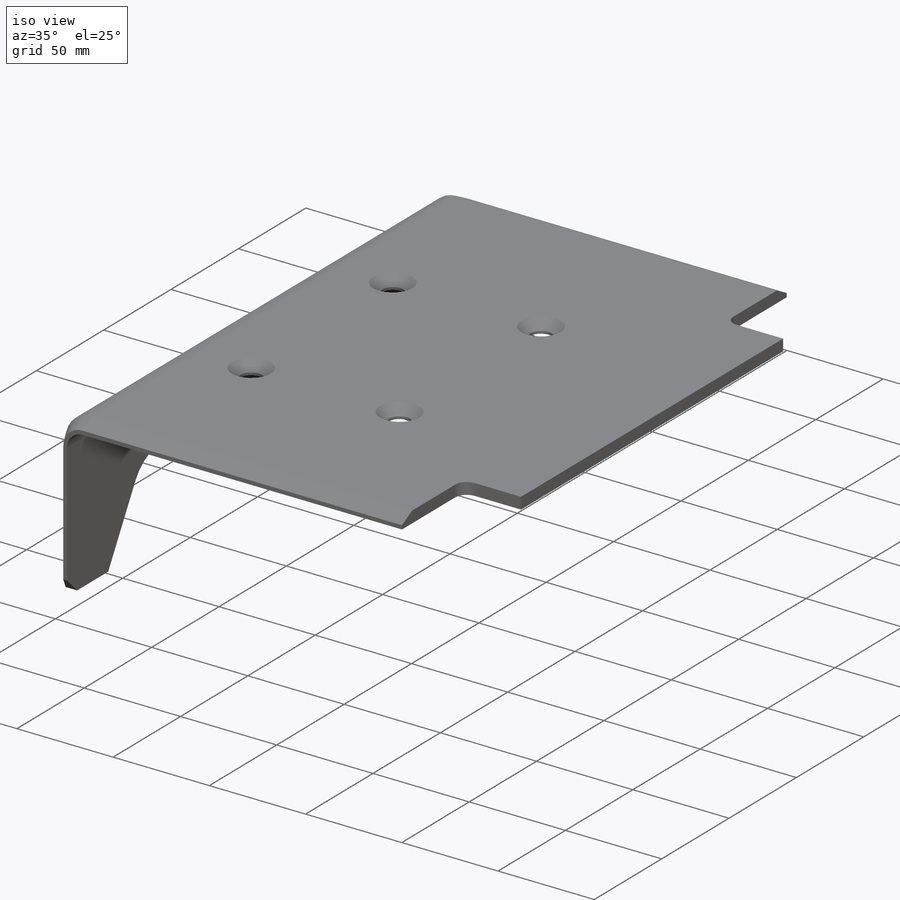
[diagram: iso view]
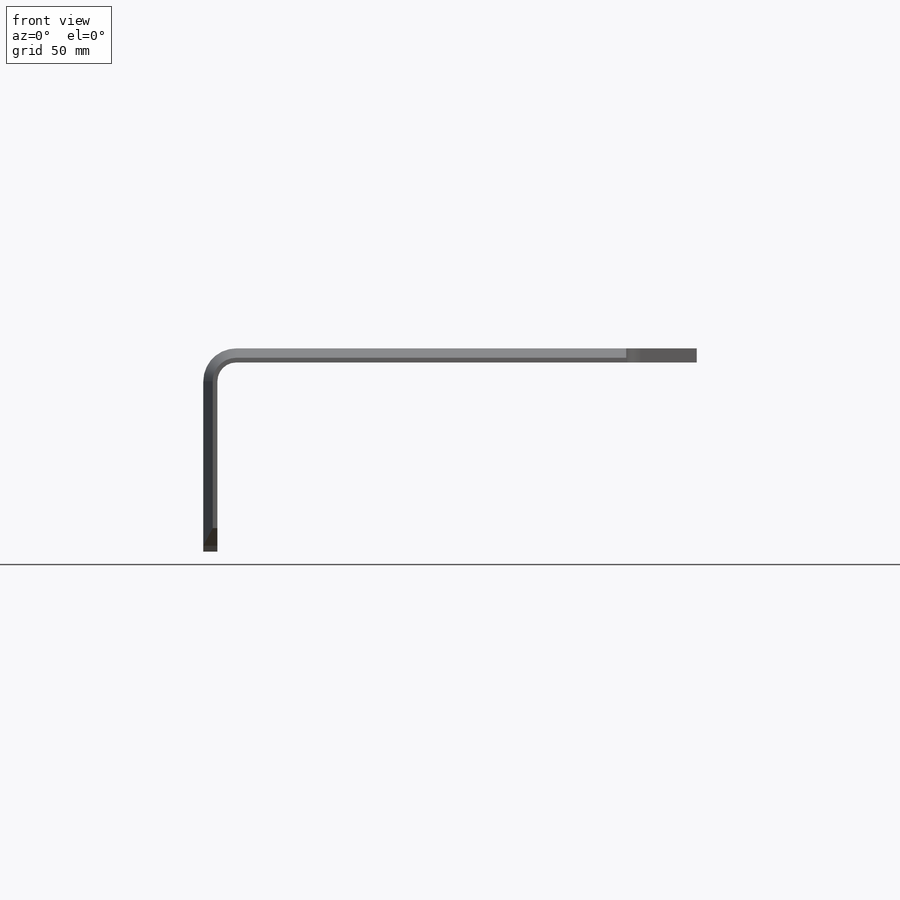
[diagram: front view]
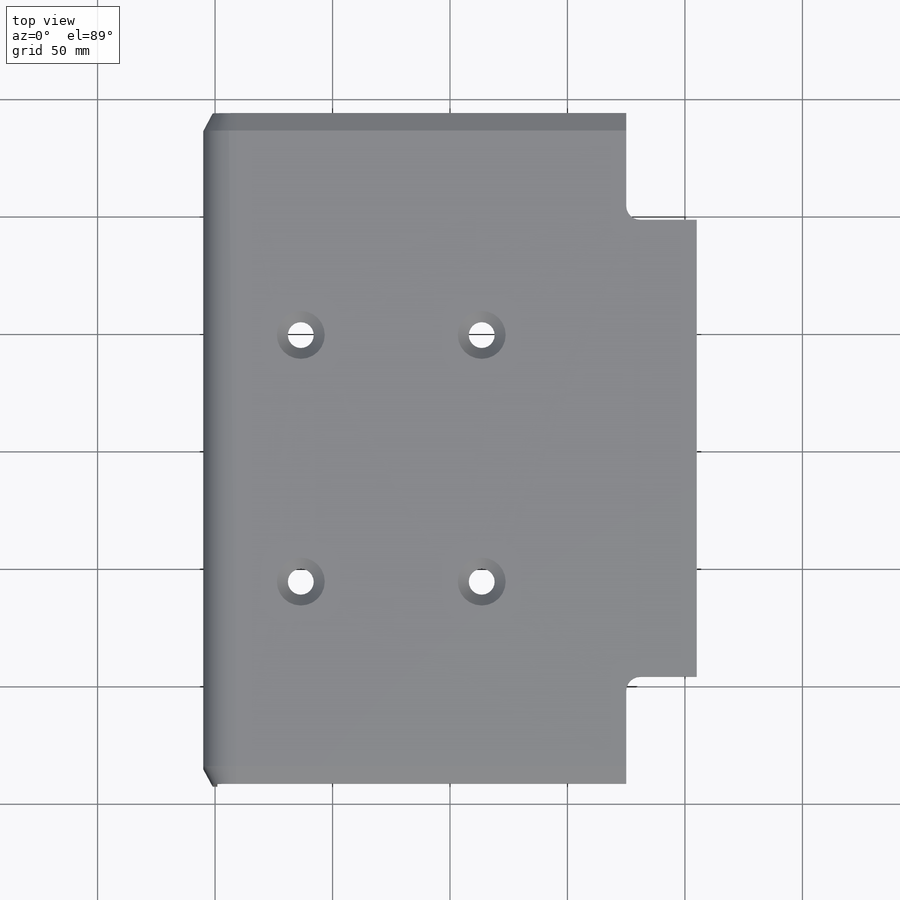
[diagram: top view]
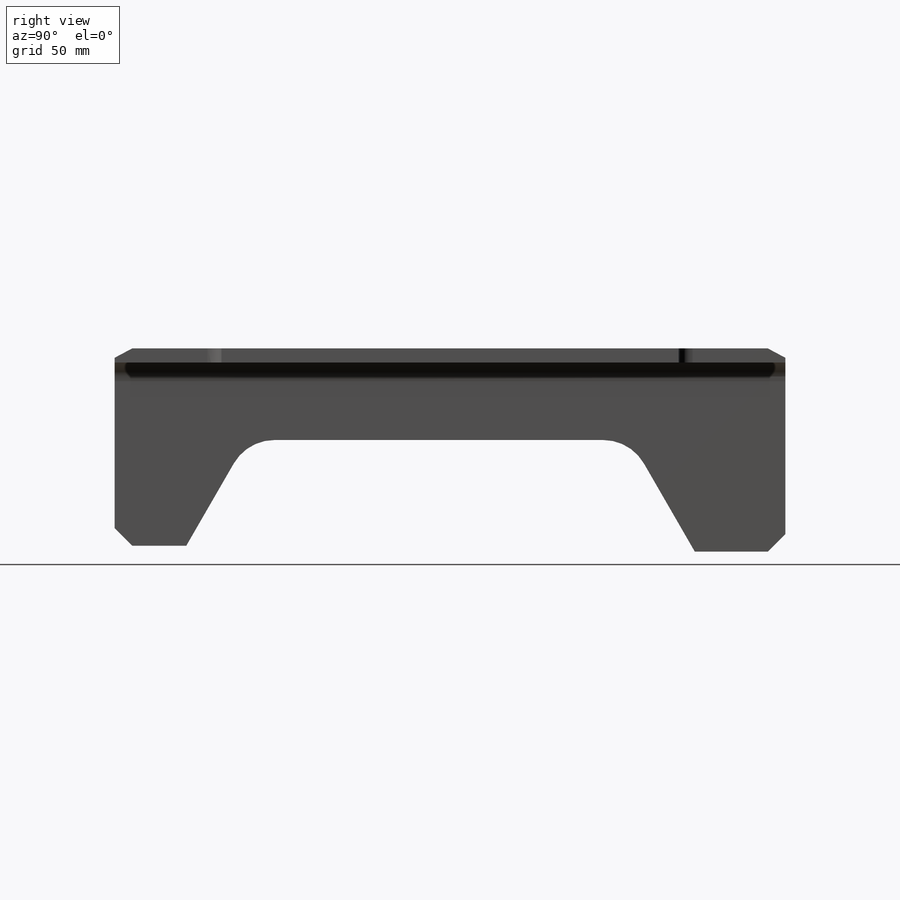
[diagram: right view]
SOLIDWORKS PART (.sldprt)
format: sldprt  version: not decoded by parser v0  size: 1,064,448 bytes
history: native  units: mm
features: sketch x12, plane x3, cut_extrude x3, chamfer x3, sheet_metal_op x2, extrude x2, material x1, hole x1, sweep x1, fillet x1 + 6 further entries (+9 scaffold rows collapsed)
feature tree (44):
  scaffold x9  (default folders/planes/origin — collapsed)
  material  "Ст 3 ГОСТ 380-2005"
  plane  "Спереди"
  plane  "Сверху"
  plane  "Слева"
  "Начало координат"
  "PTricksFreeParameters"
  "PTricksEqu"
  "PTricksFreeParameters"
  sketch  "Эскиз1"  dims[c1.D1=53.975mm c2.D1=84.0mm c2.D2=210.0mm]
  sheet_metal_op  "Листовой металл1"  Толщина=6mm
  sheet_metal_op  "Базовая кромка1"
  sketch  "Эскиз4"  dims[c1.D4=20.0mm c1.D1=30.5mm c1.D2=44.0mm c1.D3=201.0mm c2.D3=60.0deg c2.D5=36.5mm c2.D2=45.0mm c2.D6=25.0mm]
  cut_extrude  "Вытянуть2"  [1 undecoded]
  sketch  "Эскиз11"  dims[c1.D1=2.5mm c1.D2=36.5mm c1.D3=~27.958704mm c2.D3=30.0deg c2.D4=~37.943376mm]
  sketch  "Эскиз12"  dims[D1=2.5mm D2=~36.556624mm]
  extrude  "Вытянуть4"  [1 undecoded]
  sketch  "Эскиз13"  dims[D1=2.5mm]
  extrude  "Вытянуть5"  [1 undecoded]
  sketch  "Эскиз5"  dims[D1=77.0mm D2=105.0mm D3=80.0mm D4=86.0mm]
  hole  "Зенковка для винта с потайной головкой M101"  [1 undecoded]
  sketch  "Трехмерный эскиз1"
  sketch  "Эскиз6"  dims[hole-wizard template sketch: 54 standard entries collapsed; hole parameters kept: c17.Диаметр сквозного отверстия=11.0mm c17.Глубина сквозного отверстия=84.0mm c17.Диаметр передней зенковки=20.4mm c17.D4=~3.666174mm c17.Угол передней зенковки=90.0deg]
  sketch  "Эскиз9"  dims[D1=4.0mm D2=7.5mm]
  sweep  "Вырез-По траектории1"
  sketch  "Эскиз14"  dims[D1=0.0mm]
  cut_extrude  "Вытянуть6"  [1 undecoded]
  sketch  "Эскиз10"  dims[D1=45.5mm D2=30.0mm]
  cut_extrude  "Вытянуть3"  [1 undecoded]
  fillet  "Скругление1"  Radius=6mm
  chamfer  "Фаска2"  Distance=7.5mm Angle=45deg
  chamfer  "Фаска3"  Distance=7.5mm Angle=45deg
  chamfer  "Фаска4"  Distance=7.5mm Angle=45deg
  "Развертка1"
  sketch  "Сгиб-Линии1"
  "Преобразование эскиза1"
decode coverage: 15 of 25 modeling features carry decoded parameters; 6 rows unclassified (native names shown)
note: ~ marks probable driven/reference dimensions
note: 6 parameter values undecoded
summary: no parameter record found for 6 features
note: suppression state not decoded; provenance and decode notes live in map.json
